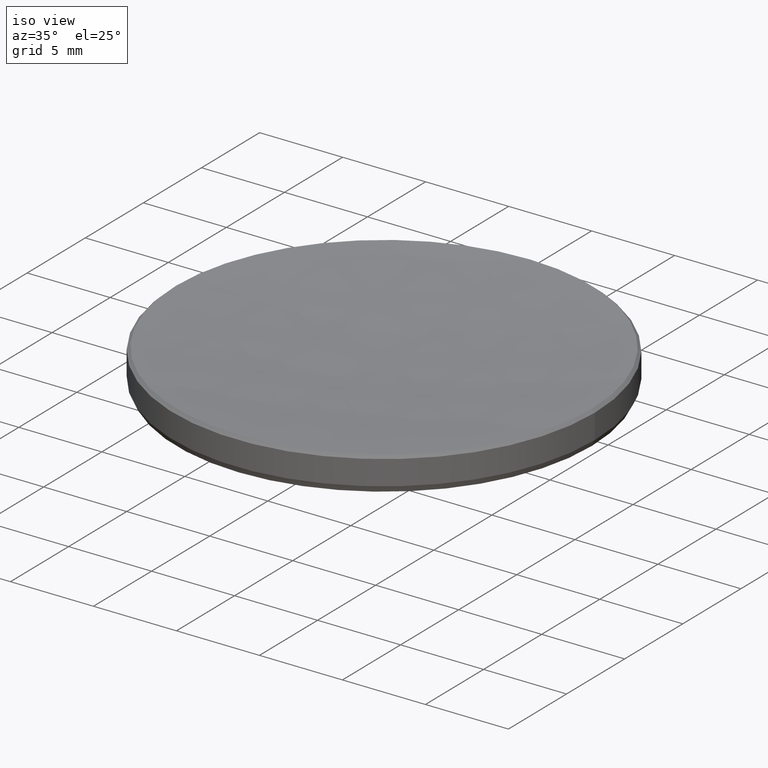
[diagram: clean part render]
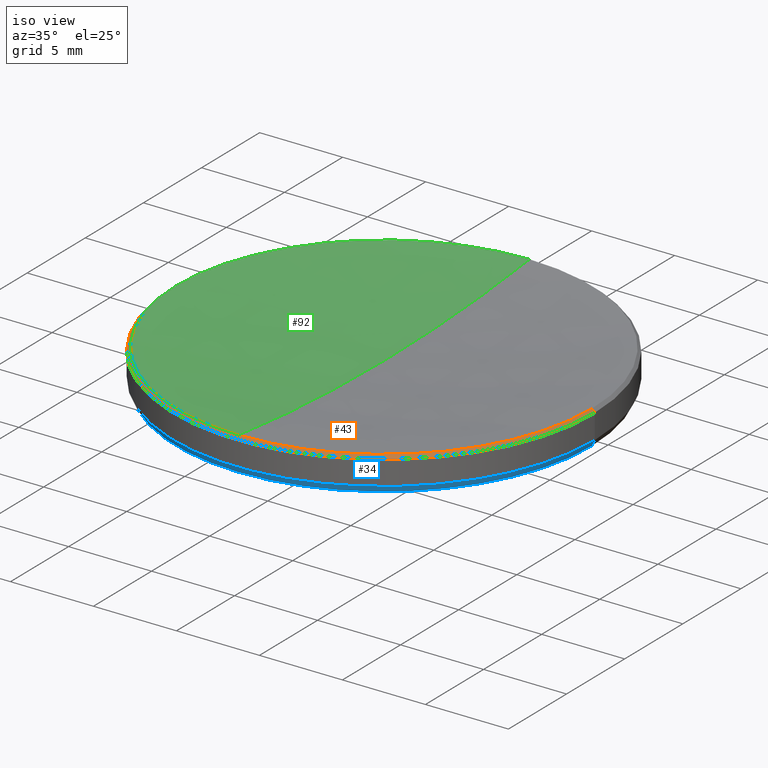
[diagram: same view with three faces highlighted in distinct colors, each labeled with its STEP entity id]
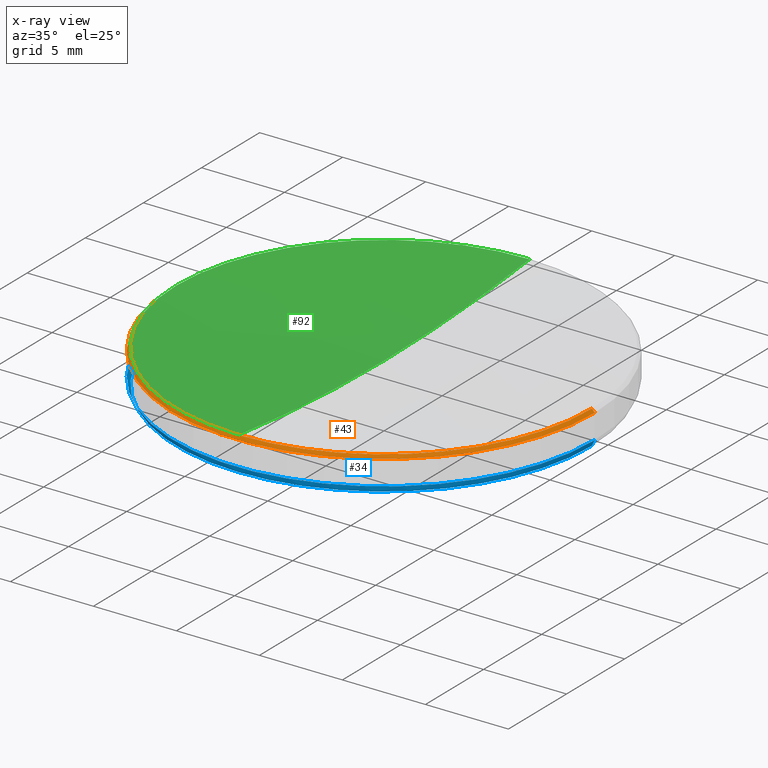
[diagram: x-ray of the same camera — body ghosted, the three highlighted faces saturated]
A machine part, iso view with three faces highlighted in distinct colors.
The next image is the same camera in x-ray (body ghosted, the three faces saturated) — at least one of them is partly hidden behind the body in this view.
Their STEP definitions:

[orange] entity #43 — the highlighted conical surface has half-angle 45 deg.
#2 = AXIS2_PLACEMENT_3D ( 'NONE', #77, #32, #174 ) ;
#21 = CONICAL_SURFACE ( 'NONE', #323, 12.52123640383887881, 0.7853981633974531640 ) ;
#23 = EDGE_CURVE ( 'NONE', #273, #49, #72, .T. ) ;
#24 = FACE_OUTER_BOUND ( 'NONE', #45, .T. ) ;
#32 = DIRECTION ( 'NONE',  ( 0.000000000000000000, 0.000000000000000000, -1.000000000000000000 ) ) ;
#42 = AXIS2_PLACEMENT_3D ( 'NONE', #267, #235, #69 ) ;
#43 = ADVANCED_FACE ( 'NONE', ( #24 ), #21, .T. ) ;
#44 = ORIENTED_EDGE ( 'NONE', *, *, #149, .F. ) ;
#45 = EDGE_LOOP ( 'NONE', ( #147, #311, #104, #270, #44 ) ) ;
#49 = VERTEX_POINT ( 'NONE', #306 ) ;
#53 = CARTESIAN_POINT ( 'NONE',  ( 0.000000000000000000, 0.000000000000000000, 5.978763596161104310 ) ) ;
#60 = EDGE_CURVE ( 'NONE', #295, #146, #228, .T. ) ;
#68 = CARTESIAN_POINT ( 'NONE',  ( -1.533409208332850696E-15, -12.52123640383880421, 5.978763596161098093 ) ) ;
#69 = DIRECTION ( 'NONE',  ( 1.000000000000000000, 0.000000000000000000, 0.000000000000000000 ) ) ;
#72 = CIRCLE ( 'NONE', #84, 12.52123640383887704 ) ;
#77 = CARTESIAN_POINT ( 'NONE',  ( 0.000000000000000000, 0.000000000000000000, 5.799999999999999822 ) ) ;
#82 = CARTESIAN_POINT ( 'NONE',  ( 0.000000000000000000, 0.000000000000000000, 5.978763596161118521 ) ) ;
#84 = AXIS2_PLACEMENT_3D ( 'NONE', #53, #177, #255 ) ;
#102 = DIRECTION ( 'NONE',  ( -0.7071067811865510144, 0.000000000000000000, -0.7071067811865441310 ) ) ;
#104 = ORIENTED_EDGE ( 'NONE', *, *, #303, .F. ) ;
#106 = CARTESIAN_POINT ( 'NONE',  ( -12.69999999999999929, 0.000000000000000000, 5.799999999999999822 ) ) ;
#111 = DIRECTION ( 'NONE',  ( 0.7071067811865510144, 8.659560562354975999E-17, -0.7071067811865441310 ) ) ;
#125 = VECTOR ( 'NONE', #102, 1000.000000000000000 ) ;
#142 = LINE ( 'NONE', #164, #299 ) ;
#146 = VERTEX_POINT ( 'NONE', #106 ) ;
#147 = ORIENTED_EDGE ( 'NONE', *, *, #243, .F. ) ;
#149 = EDGE_CURVE ( 'NONE', #169, #146, #248, .T. ) ;
#164 = CARTESIAN_POINT ( 'NONE',  ( 12.52123640383887881, 1.533409208332859768E-15, 5.978763596161118521 ) ) ;
#169 = VERTEX_POINT ( 'NONE', #204 ) ;
#174 = DIRECTION ( 'NONE',  ( 1.000000000000000000, 0.000000000000000000, 0.000000000000000000 ) ) ;
#177 = DIRECTION ( 'NONE',  ( -0.000000000000000000, -0.000000000000000000, 1.000000000000000000 ) ) ;
#184 = CARTESIAN_POINT ( 'NONE',  ( -12.52123640383887704, 0.000000000000000000, 5.978763596161104310 ) ) ;
#204 = CARTESIAN_POINT ( 'NONE',  ( 12.69999999999999929, 1.555301434917138433E-15, 5.799999999999999822 ) ) ;
#223 = DIRECTION ( 'NONE',  ( -1.000000000000000000, 0.000000000000000000, 0.000000000000000000 ) ) ;
#228 = LINE ( 'NONE', #330, #125 ) ;
#235 = DIRECTION ( 'NONE',  ( -0.000000000000000000, -0.000000000000000000, 1.000000000000000000 ) ) ;
#243 = EDGE_CURVE ( 'NONE', #49, #169, #142, .T. ) ;
#248 = CIRCLE ( 'NONE', #2, 12.69999999999999929 ) ;
#255 = DIRECTION ( 'NONE',  ( 1.000000000000000000, 0.000000000000000000, 0.000000000000000000 ) ) ;
#267 = CARTESIAN_POINT ( 'NONE',  ( 0.000000000000000000, 0.000000000000000000, 5.978763596161104310 ) ) ;
#270 = ORIENTED_EDGE ( 'NONE', *, *, #60, .T. ) ;
#273 = VERTEX_POINT ( 'NONE', #68 ) ;
#279 = DIRECTION ( 'NONE',  ( 0.000000000000000000, 0.000000000000000000, -1.000000000000000000 ) ) ;
#295 = VERTEX_POINT ( 'NONE', #184 ) ;
#299 = VECTOR ( 'NONE', #111, 1000.000000000000000 ) ;
#303 = EDGE_CURVE ( 'NONE', #295, #273, #329, .T. ) ;
#306 = CARTESIAN_POINT ( 'NONE',  ( 12.52123640383887704, 1.544355321624999001E-15, 5.978763596161104310 ) ) ;
#311 = ORIENTED_EDGE ( 'NONE', *, *, #23, .F. ) ;
#323 = AXIS2_PLACEMENT_3D ( 'NONE', #82, #279, #223 ) ;
#329 = CIRCLE ( 'NONE', #42, 12.52123640383887704 ) ;
#330 = CARTESIAN_POINT ( 'NONE',  ( -12.52123640383887881, 0.000000000000000000, 5.978763596161118521 ) ) ;

[blue] entity #34 — the highlighted conical surface has half-angle 26.771 deg.
#5 = EDGE_CURVE ( 'NONE', #307, #19, #41, .T. ) ;
#7 = EDGE_CURVE ( 'NONE', #19, #51, #205, .T. ) ;
#19 = VERTEX_POINT ( 'NONE', #154 ) ;
#26 = DIRECTION ( 'NONE',  ( 1.000000000000000000, 0.000000000000000000, 0.000000000000000000 ) ) ;
#27 = DIRECTION ( 'NONE',  ( -0.000000000000000000, -0.000000000000000000, 1.000000000000000000 ) ) ;
#34 = ADVANCED_FACE ( 'NONE', ( #127 ), #283, .T. ) ;
#41 = LINE ( 'NONE', #121, #312 ) ;
#51 = VERTEX_POINT ( 'NONE', #129 ) ;
#52 = CARTESIAN_POINT ( 'NONE',  ( 0.000000000000000000, 0.000000000000000000, 3.938057364562333351 ) ) ;
#54 = VERTEX_POINT ( 'NONE', #175 ) ;
#56 = CARTESIAN_POINT ( 'NONE',  ( 12.69999999999999929, 0.000000000000000000, 4.313967534857077624 ) ) ;
#62 = CARTESIAN_POINT ( 'NONE',  ( -12.51034897911231170, 1.543688659132881617E-15, 3.938057364562333351 ) ) ;
#63 = AXIS2_PLACEMENT_3D ( 'NONE', #81, #199, #108 ) ;
#74 = ORIENTED_EDGE ( 'NONE', *, *, #207, .T. ) ;
#78 = DIRECTION ( 'NONE',  ( -1.000000000000000000, 0.000000000000000000, 0.000000000000000000 ) ) ;
#80 = CIRCLE ( 'NONE', #63, 12.51034897911231170 ) ;
#81 = CARTESIAN_POINT ( 'NONE',  ( 0.000000000000000000, 0.000000000000000000, 3.938057364562333351 ) ) ;
#108 = DIRECTION ( 'NONE',  ( 1.000000000000000000, 0.000000000000000000, 0.000000000000000000 ) ) ;
#121 = CARTESIAN_POINT ( 'NONE',  ( -12.69999999999999929, 1.555301434917138433E-15, 4.313967534857077624 ) ) ;
#123 = DIRECTION ( 'NONE',  ( -0.4504330560855231425, 5.516214003652961775E-17, 0.8928102049066508616 ) ) ;
#127 = FACE_OUTER_BOUND ( 'NONE', #324, .T. ) ;
#129 = CARTESIAN_POINT ( 'NONE',  ( 12.69999999999999929, 1.555301434917138433E-15, 4.313967534857077624 ) ) ;
#138 = AXIS2_PLACEMENT_3D ( 'NONE', #159, #27, #151 ) ;
#151 = DIRECTION ( 'NONE',  ( 1.000000000000000000, 0.000000000000000000, 0.000000000000000000 ) ) ;
#153 = DIRECTION ( 'NONE',  ( 0.000000000000000000, 0.000000000000000000, -1.000000000000000000 ) ) ;
#154 = CARTESIAN_POINT ( 'NONE',  ( -12.69999999999999929, 0.000000000000000000, 4.313967534857077624 ) ) ;
#159 = CARTESIAN_POINT ( 'NONE',  ( 0.000000000000000000, 0.000000000000000000, 4.313967534857077624 ) ) ;
#162 = EDGE_CURVE ( 'NONE', #276, #54, #219, .T. ) ;
#166 = AXIS2_PLACEMENT_3D ( 'NONE', #253, #197, #78 ) ;
#171 = ORIENTED_EDGE ( 'NONE', *, *, #7, .F. ) ;
#175 = CARTESIAN_POINT ( 'NONE',  ( -1.532075883348624801E-15, -12.51034897911230992, 3.938057364562333351 ) ) ;
#181 = EDGE_CURVE ( 'NONE', #54, #307, #80, .T. ) ;
#188 = ORIENTED_EDGE ( 'NONE', *, *, #181, .F. ) ;
#197 = DIRECTION ( 'NONE',  ( -0.000000000000000000, -0.000000000000000000, 1.000000000000000000 ) ) ;
#199 = DIRECTION ( 'NONE',  ( 0.000000000000000000, 0.000000000000000000, -1.000000000000000000 ) ) ;
#205 = CIRCLE ( 'NONE', #166, 12.69999999999999929 ) ;
#207 = EDGE_CURVE ( 'NONE', #276, #51, #281, .T. ) ;
#209 = CARTESIAN_POINT ( 'NONE',  ( 12.51034897911231170, 0.000000000000000000, 3.938057364562333351 ) ) ;
#219 = CIRCLE ( 'NONE', #262, 12.51034897911231170 ) ;
#224 = ORIENTED_EDGE ( 'NONE', *, *, #5, .F. ) ;
#234 = DIRECTION ( 'NONE',  ( 0.4504330560855231425, 0.000000000000000000, 0.8928102049066508616 ) ) ;
#247 = VECTOR ( 'NONE', #234, 1000.000000000000114 ) ;
#249 = ORIENTED_EDGE ( 'NONE', *, *, #162, .F. ) ;
#253 = CARTESIAN_POINT ( 'NONE',  ( 0.000000000000000000, 0.000000000000000000, 4.313967534857077624 ) ) ;
#262 = AXIS2_PLACEMENT_3D ( 'NONE', #52, #153, #26 ) ;
#276 = VERTEX_POINT ( 'NONE', #209 ) ;
#281 = LINE ( 'NONE', #56, #247 ) ;
#283 = CONICAL_SURFACE ( 'NONE', #138, 12.69999999999999929, 0.4672503280471582698 ) ;
#307 = VERTEX_POINT ( 'NONE', #62 ) ;
#312 = VECTOR ( 'NONE', #123, 1000.000000000000114 ) ;
#324 = EDGE_LOOP ( 'NONE', ( #224, #188, #249, #74, #171 ) ) ;

[green] entity #92 — the highlighted spherical surface has radius 106.9 mm.
#8 = CARTESIAN_POINT ( 'NONE',  ( 0.000000000000000000, 0.000000000000000000, 112.1429225148808655 ) ) ;
#28 = CIRCLE ( 'NONE', #225, 106.9000000000000057 ) ;
#42 = AXIS2_PLACEMENT_3D ( 'NONE', #267, #235, #69 ) ;
#50 = EDGE_CURVE ( 'NONE', #71, #295, #179, .T. ) ;
#57 = CARTESIAN_POINT ( 'NONE',  ( 0.000000000000000000, 12.52123640383880421, 5.978763596161098093 ) ) ;
#67 = DIRECTION ( 'NONE',  ( -1.224646799147353207E-16, -1.000000000000000000, 0.000000000000000000 ) ) ;
#68 = CARTESIAN_POINT ( 'NONE',  ( -1.533409208332850696E-15, -12.52123640383880421, 5.978763596161098093 ) ) ;
#69 = DIRECTION ( 'NONE',  ( 1.000000000000000000, 0.000000000000000000, 0.000000000000000000 ) ) ;
#71 = VERTEX_POINT ( 'NONE', #57 ) ;
#92 = ADVANCED_FACE ( 'NONE', ( #135 ), #183, .F. ) ;
#97 = DIRECTION ( 'NONE',  ( 1.000000000000000000, 0.000000000000000000, 0.000000000000000000 ) ) ;
#113 = AXIS2_PLACEMENT_3D ( 'NONE', #8, #236, #291 ) ;
#118 = EDGE_CURVE ( 'NONE', #193, #273, #28, .T. ) ;
#122 = CIRCLE ( 'NONE', #309, 106.9000000000000057 ) ;
#135 = FACE_OUTER_BOUND ( 'NONE', #168, .T. ) ;
#148 = ORIENTED_EDGE ( 'NONE', *, *, #118, .F. ) ;
#163 = DIRECTION ( 'NONE',  ( -1.000000000000000000, 1.224646799147353207E-16, 0.000000000000000000 ) ) ;
#168 = EDGE_LOOP ( 'NONE', ( #148, #322, #245, #256 ) ) ;
#176 = CARTESIAN_POINT ( 'NONE',  ( 0.000000000000000000, 0.000000000000000000, 112.1429225148808655 ) ) ;
#179 = CIRCLE ( 'NONE', #264, 12.52123640383887704 ) ;
#183 = SPHERICAL_SURFACE ( 'NONE', #113, 106.9000000000000057 ) ;
#184 = CARTESIAN_POINT ( 'NONE',  ( -12.52123640383887704, 0.000000000000000000, 5.978763596161104310 ) ) ;
#193 = VERTEX_POINT ( 'NONE', #308 ) ;
#206 = EDGE_CURVE ( 'NONE', #193, #71, #122, .T. ) ;
#210 = CARTESIAN_POINT ( 'NONE',  ( 0.000000000000000000, 0.000000000000000000, 112.1429225148808655 ) ) ;
#225 = AXIS2_PLACEMENT_3D ( 'NONE', #210, #163, #67 ) ;
#235 = DIRECTION ( 'NONE',  ( -0.000000000000000000, -0.000000000000000000, 1.000000000000000000 ) ) ;
#236 = DIRECTION ( 'NONE',  ( -1.000000000000000000, 0.000000000000000000, 0.000000000000000000 ) ) ;
#245 = ORIENTED_EDGE ( 'NONE', *, *, #50, .T. ) ;
#256 = ORIENTED_EDGE ( 'NONE', *, *, #303, .T. ) ;
#260 = DIRECTION ( 'NONE',  ( 0.000000000000000000, 0.000000000000000000, -1.000000000000000000 ) ) ;
#264 = AXIS2_PLACEMENT_3D ( 'NONE', #328, #282, #97 ) ;
#267 = CARTESIAN_POINT ( 'NONE',  ( 0.000000000000000000, 0.000000000000000000, 5.978763596161104310 ) ) ;
#273 = VERTEX_POINT ( 'NONE', #68 ) ;
#282 = DIRECTION ( 'NONE',  ( -0.000000000000000000, -0.000000000000000000, 1.000000000000000000 ) ) ;
#291 = DIRECTION ( 'NONE',  ( 0.000000000000000000, 1.000000000000000000, 0.000000000000000000 ) ) ;
#295 = VERTEX_POINT ( 'NONE', #184 ) ;
#303 = EDGE_CURVE ( 'NONE', #295, #273, #329, .T. ) ;
#308 = CARTESIAN_POINT ( 'NONE',  ( 0.000000000000000000, 6.545737141442603608E-15, 5.242922514880857143 ) ) ;
#309 = AXIS2_PLACEMENT_3D ( 'NONE', #176, #313, #260 ) ;
#313 = DIRECTION ( 'NONE',  ( 1.000000000000000000, 0.000000000000000000, 0.000000000000000000 ) ) ;
#322 = ORIENTED_EDGE ( 'NONE', *, *, #206, .T. ) ;
#328 = CARTESIAN_POINT ( 'NONE',  ( 0.000000000000000000, 0.000000000000000000, 5.978763596161104310 ) ) ;
#329 = CIRCLE ( 'NONE', #42, 12.52123640383887704 ) ;